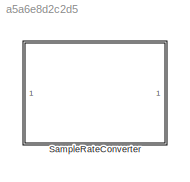
MODEL slx_a5a6e8d2c2d5
KIND library
CONFIG AbsTol = auto
CONFIG EnableMultiTasking = off
CONFIG FixedStep = auto
CONFIG MaxStep = auto
CONFIG MinStep = auto
CONFIG RelTol = 1e-3
CONFIG SampleTimeConstraint = Unconstrained
CONFIG SolverName = VariableStepAuto
CONFIG StartTime = 0.0
CONFIG StopTime = 10.0
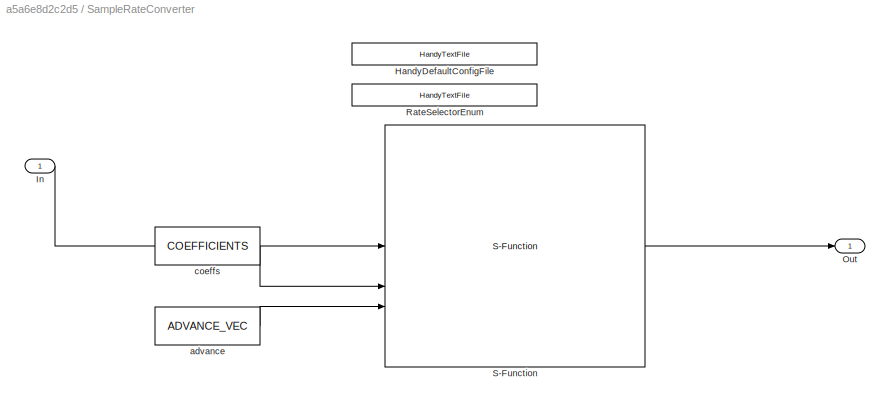
BLOCK [SubSystem] SampleRateConverter
  BlockKeywords = __PRM__SERIALIZED__DATA__:SRC
BLOCK [Reference] SampleRateConverter/HandyDefaultConfigFile  REF=HandyTextFile/HandyTextFile
  SourceBlock = HandyTextFile/HandyTextFile
  SourceType = Talaria Handy Text File
BLOCK [Inport] SampleRateConverter/In
BLOCK [Outport] SampleRateConverter/Out
  VectorParamsAs1DForOutWhenUnconnected = off
BLOCK [Reference] SampleRateConverter/RateSelectorEnum  REF=HandyTextFile/HandyTextFile
  SourceBlock = HandyTextFile/HandyTextFile
  SourceType = Talaria Handy Text File
BLOCK [S-Function] SampleRateConverter/S-Function
  EnableBusSupport = off
  FunctionName = SampleRateConverter_sfunc
  Parameters = Config.Upfactor, Config.Downfactor, Config.OutFrameSize, BLOCKSIZE
  SFcnIsStateOwnerBlock = off
  SFunctionDeploymentMode = off
BLOCK [Constant] SampleRateConverter/advance
  OutDataTypeStr = int32
  SampleTime = -1
  Value = ADVANCE_VEC
  VectorParams1D = off
BLOCK [Constant] SampleRateConverter/coeffs
  OutDataTypeStr = single
  SampleTime = -1
  Value = COEFFICIENTS
  VectorParams1D = off
LINE SampleRateConverter/In:1 -> SampleRateConverter/S-Function:1
LINE SampleRateConverter/S-Function:1 -> SampleRateConverter/Out:1
LINE SampleRateConverter/advance:1 -> SampleRateConverter/S-Function:3
LINE SampleRateConverter/coeffs:1 -> SampleRateConverter/S-Function:2
